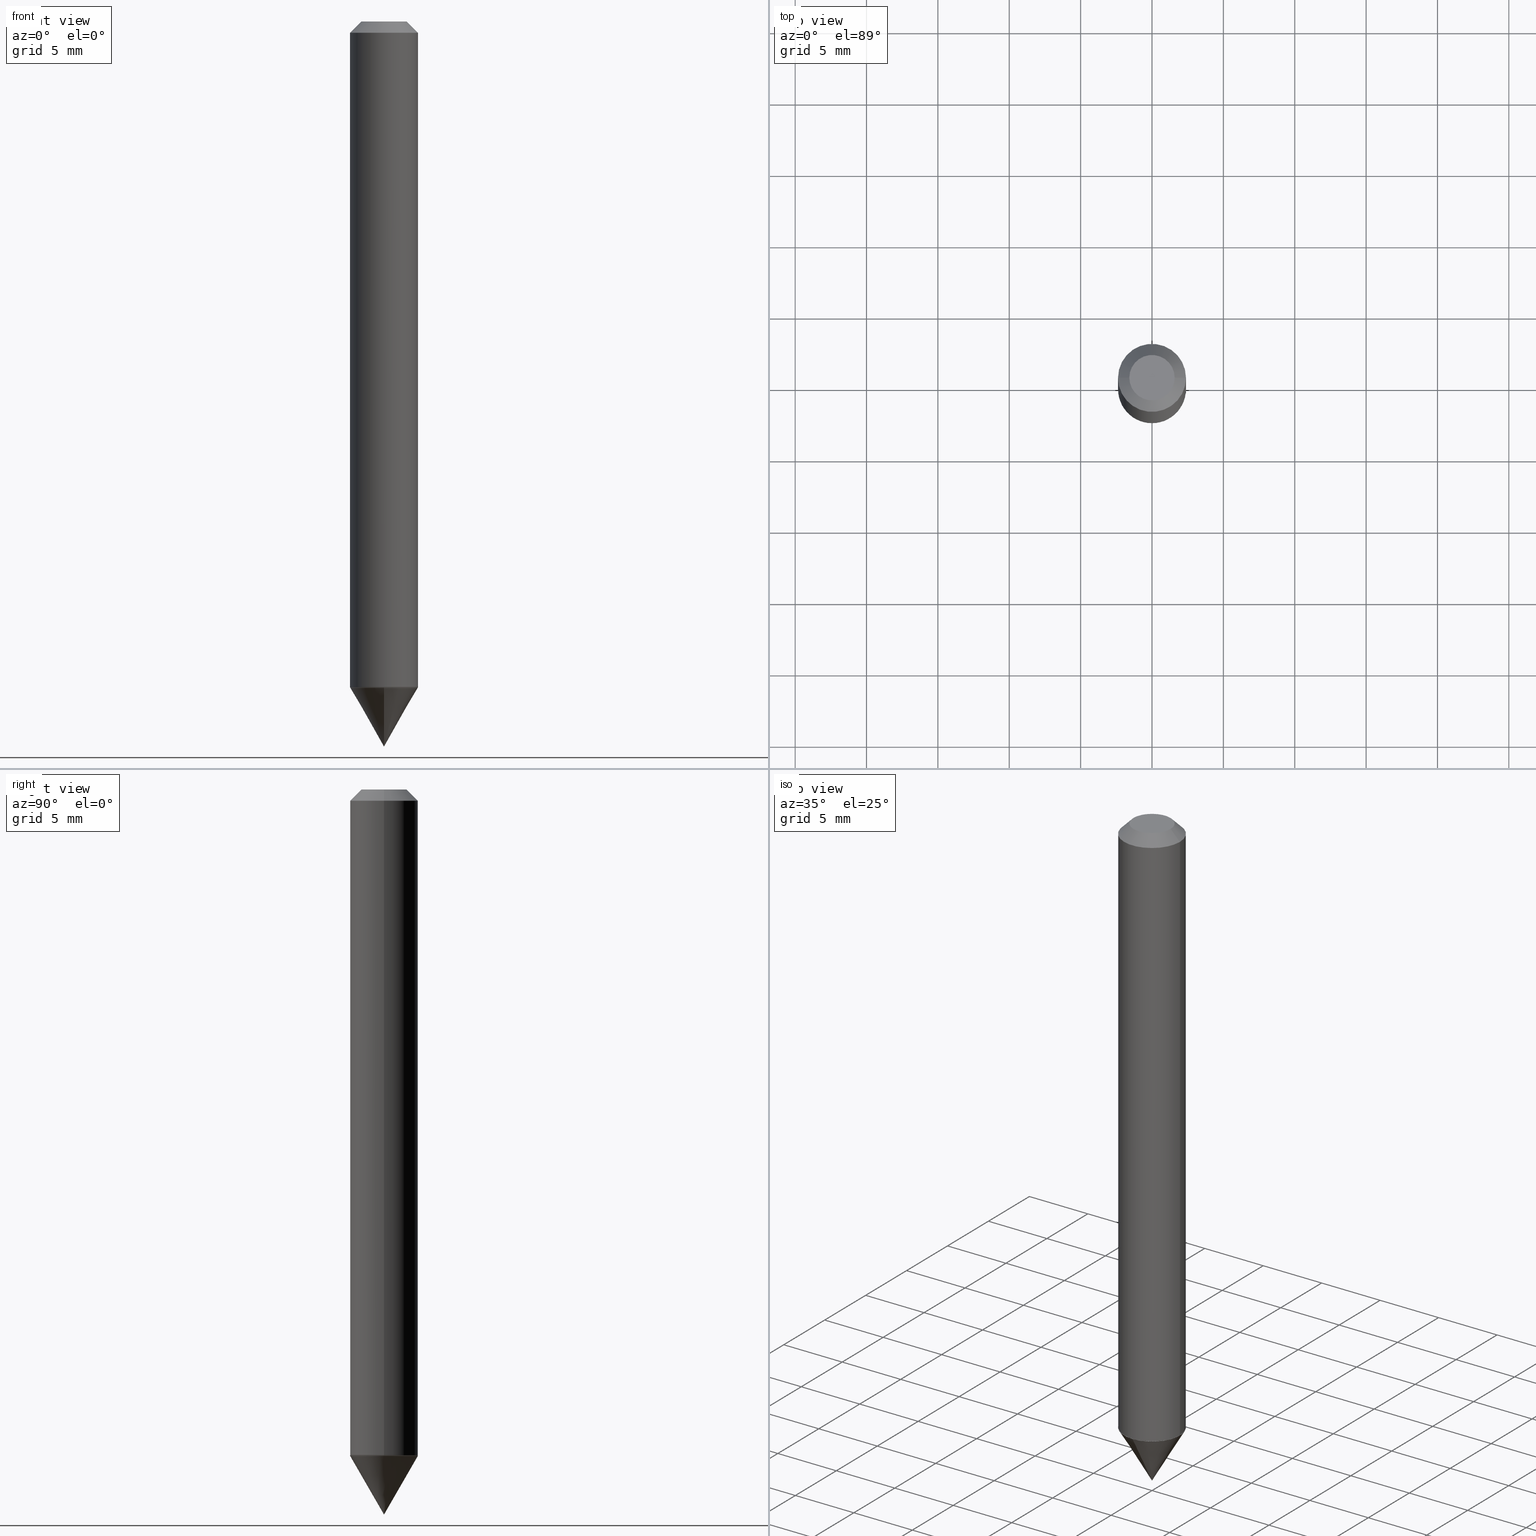
[diagram: canonical four-view strip — front | top / right | iso, engineering-drawing reading convention]
A machine part, canonical four-view strip (front | top / right | iso — engineering-drawing reading convention). The complete STEP part file that produces these views, byte-faithful:
ISO-10303-21;
HEADER;
FILE_DESCRIPTION (( 'STEP AP203' ),
    '1' );
FILE_NAME ('74004.STEP',
    '2024-03-04T15:00:55',
    ( '' ),
    ( '' ),
    'SwSTEP 2.0',
    'SolidWorks 2023',
    '' );
FILE_SCHEMA (( 'CONFIG_CONTROL_DESIGN' ));
ENDSEC;

DATA;
#1 = ORIENTED_EDGE ( 'NONE', *, *, #211, .F. ) ;
#2 = ADVANCED_FACE ( 'NONE', ( #42 ), #99, .T. ) ;
#3 = PERSON_AND_ORGANIZATION ( #117, #87 ) ;
#4 = CARTESIAN_POINT ( 'NONE',  ( -9.358861080966648015E-47, 1.336197326842804765E-32, 3.827021247335480313E-18 ) ) ;
#5 = ADVANCED_FACE ( 'NONE', ( #45 ), #199, .T. ) ;
#6 = CARTESIAN_POINT ( 'NONE',  ( 7.629862675297676574E-31, -1.089342177719068640E-16, -0.03120000000000020673 ) ) ;
#7 = DIRECTION ( 'NONE',  ( -2.445468806185136597E-29, 3.491481338843145583E-15, 1.000000000000000000 ) ) ;
#8 = AXIS2_PLACEMENT_3D ( 'NONE', #168, #170, #351 ) ;
#9 = CONICAL_SURFACE ( 'NONE', #8, 0.09375000000000001388, 0.7853981633974446153 ) ;
#10 = AXIS2_PLACEMENT_3D ( 'NONE', #345, #70, #13 ) ;
#11 = DIRECTION ( 'NONE',  ( 1.000000000000000000, -6.982962677686265133E-15, 0.000000000000000000 ) ) ;
#12 = FACE_OUTER_BOUND ( 'NONE', #372, .T. ) ;
#13 = DIRECTION ( 'NONE',  ( 1.000000000000000000, -6.982962677686266711E-15, 4.876176775795935793E-29 ) ) ;
#14 = LINE ( 'NONE', #19, #314 ) ;
#15 = CARTESIAN_POINT ( 'NONE',  ( 4.494215009748989040E-29, -6.415483977791985372E-15, -1.837620236790417083 ) ) ;
#16 = ORIENTED_EDGE ( 'NONE', *, *, #120, .F. ) ;
#17 = DIRECTION ( 'NONE',  ( 3.189554933143811858E-29, -2.425907654286061591E-15, -1.000000000000000000 ) ) ;
#18 = ORIENTED_EDGE ( 'NONE', *, *, #279, .F. ) ;
#19 = CARTESIAN_POINT ( 'NONE',  ( 0.09375000000000024980, -7.067178034328510701E-15, -1.836620236790417415 ) ) ;
#20 = AXIS2_PLACEMENT_3D ( 'NONE', #24, #85, #151 ) ;
#21 = EDGE_CURVE ( 'NONE', #179, #210, #86, .T. ) ;
#22 = FACE_OUTER_BOUND ( 'NONE', #75, .T. ) ;
#23 = CARTESIAN_POINT ( 'NONE',  ( 4.492620232282417841E-29, -6.414271023964843911E-15, -1.837120236790417582 ) ) ;
#24 = CARTESIAN_POINT ( 'NONE',  ( 4.492620232282417841E-29, -6.414271023964843911E-15, -1.837120236790417582 ) ) ;
#25 = APPLICATION_PROTOCOL_DEFINITION ( 'international standard', 'config_control_design', 1994, #330 ) ;
#26 = AXIS2_PLACEMENT_3D ( 'NONE', #23, #106, #265 ) ;
#27 = ORIENTED_EDGE ( 'NONE', *, *, #202, .F. ) ;
#28 = AXIS2_PLACEMENT_3D ( 'NONE', #267, #377, #229 ) ;
#29 = CONICAL_SURFACE ( 'NONE', #274, 0.09374999999999991673, 0.5235987755982879355 ) ;
#30 = CIRCLE ( 'NONE', #388, 0.09374999999999991673 ) ;
#31 = EDGE_CURVE ( 'NONE', #136, #154, #373, .T. ) ;
#32 =( GEOMETRIC_REPRESENTATION_CONTEXT ( 3 ) GLOBAL_UNCERTAINTY_ASSIGNED_CONTEXT ( ( #359 ) ) GLOBAL_UNIT_ASSIGNED_CONTEXT ( ( #124, #246, #327 ) ) REPRESENTATION_CONTEXT ( 'NONE', 'WORKASPACE' ) );
#33 = ORIENTED_EDGE ( 'NONE', *, *, #325, .T. ) ;
#34 = APPROVAL ( #307, 'UNSPECIFIED' ) ;
#35 = PERSON_AND_ORGANIZATION ( #117, #87 ) ;
#36 = CC_DESIGN_PERSON_AND_ORGANIZATION_ASSIGNMENT ( #35, #215, ( #150 ) ) ;
#37 = VERTEX_POINT ( 'NONE', #319 ) ;
#38 = DIRECTION ( 'NONE',  ( 3.189554933143811858E-29, -2.425907654286061591E-15, -1.000000000000000000 ) ) ;
#39 = EDGE_LOOP ( 'NONE', ( #1, #188, #153 ) ) ;
#40 = EDGE_CURVE ( 'NONE', #158, #37, #375, .T. ) ;
#41 = EDGE_LOOP ( 'NONE', ( #157, #303 ) ) ;
#42 = FACE_OUTER_BOUND ( 'NONE', #338, .T. ) ;
#43 = DIRECTION ( 'NONE',  ( 6.982962677686265922E-15, 1.000000000000000000, -2.929595703661407273E-15 ) ) ;
#44 = CARTESIAN_POINT ( 'NONE',  ( -0.09325000000000002731, -5.749040695694437318E-15, -1.837120236790416916 ) ) ;
#45 = FACE_OUTER_BOUND ( 'NONE', #184, .T. ) ;
#46 = LINE ( 'NONE', #291, #203 ) ;
#47 = EDGE_LOOP ( 'NONE', ( #317, #293 ) ) ;
#48 = CONICAL_SURFACE ( 'NONE', #371, 0.09375000000000024980, 0.7853981633980459121 ) ;
#49 = CARTESIAN_POINT ( 'NONE',  ( 4.492620232282417841E-29, -6.414271023964843911E-15, -1.837120236790417582 ) ) ;
#50 = CIRCLE ( 'NONE', #324, 0.06255000000000002225 ) ;
#51 = FACE_OUTER_BOUND ( 'NONE', #47, .T. ) ;
#52 = LINE ( 'NONE', #122, #69 ) ;
#53 = DESIGN_CONTEXT ( 'detailed design', #330, 'design' ) ;
#54 = MECHANICAL_CONTEXT ( 'NONE', #68, 'mechanical' ) ;
#55 = APPLICATION_PROTOCOL_DEFINITION ( 'international standard', 'config_control_design', 1994, #68 ) ;
#56 = APPROVAL_STATUS ( 'not_yet_approved' ) ;
#57 = EDGE_CURVE ( 'NONE', #158, #306, #239, .T. ) ;
#58 = ORIENTED_EDGE ( 'NONE', *, *, #31, .F. ) ;
#59 = AXIS2_PLACEMENT_3D ( 'NONE', #6, #253, #221 ) ;
#60 = ORIENTED_EDGE ( 'NONE', *, *, #142, .F. ) ;
#61 = PERSON_AND_ORGANIZATION_ROLE ( 'design_supplier' ) ;
#62 = EDGE_LOOP ( 'NONE', ( #92, #224, #362, #195 ) ) ;
#63 = APPROVAL_STATUS ( 'not_yet_approved' ) ;
#64 = CARTESIAN_POINT ( 'NONE',  ( -0.09375000000000001388, -2.594595935758567797E-15, -0.03120000000000020673 ) ) ;
#65 = EDGE_CURVE ( 'NONE', #390, #193, #191, .T. ) ;
#66 = ORIENTED_EDGE ( 'NONE', *, *, #344, .F. ) ;
#67 = CARTESIAN_POINT ( 'NONE',  ( -6.414565627915929694E-16, -0.09325000000000643885, -1.837120236790417360 ) ) ;
#68 = APPLICATION_CONTEXT ( 'configuration controlled 3d designs of mechanical parts and assemblies' ) ;
#69 = VECTOR ( 'NONE', #121, 39.37007874015748143 ) ;
#70 = DIRECTION ( 'NONE',  ( -2.445468806185136597E-29, 3.491481338843145583E-15, 1.000000000000000000 ) ) ;
#71 = DIRECTION ( 'NONE',  ( -2.445468806185136597E-29, 3.491481338843145583E-15, 1.000000000000000000 ) ) ;
#72 = CC_DESIGN_SECURITY_CLASSIFICATION ( #150, ( #271 ) ) ;
#73 = CC_DESIGN_PERSON_AND_ORGANIZATION_ASSIGNMENT ( #175, #361, ( #173 ) ) ;
#74 = FACE_OUTER_BOUND ( 'NONE', #39, .T. ) ;
#75 = EDGE_LOOP ( 'NONE', ( #278, #280 ) ) ;
#76 = DIRECTION ( 'NONE',  ( 1.000000000000000000, -6.982962677686266711E-15, 4.876176775795935793E-29 ) ) ;
#77 = DIRECTION ( 'NONE',  ( -2.445468806185136597E-29, 3.491481338843145583E-15, 1.000000000000000000 ) ) ;
#78 = DIRECTION ( 'NONE',  ( -2.445468806185136597E-29, 3.491481338843145583E-15, 1.000000000000000000 ) ) ;
#79 = LOCAL_TIME ( 10, 0, 55.00000000000000000, #96 ) ;
#80 = ORIENTED_EDGE ( 'NONE', *, *, #259, .F. ) ;
#81 = DIRECTION ( 'NONE',  ( -1.000000000000000000, 6.982962677686265922E-15, -4.876176775795935793E-29 ) ) ;
#82 = AXIS2_PLACEMENT_3D ( 'NONE', #144, #78, #230 ) ;
#83 = CIRCLE ( 'NONE', #354, 0.09374999999999991673 ) ;
#84 = DATE_AND_TIME ( #355, #364 ) ;
#85 = DIRECTION ( 'NONE',  ( 3.189554933143811858E-29, -2.425907654286061591E-15, -1.000000000000000000 ) ) ;
#86 = CIRCLE ( 'NONE', #206, 0.09325000000000002731 ) ;
#87 = ORGANIZATION ( 'UNSPECIFIED', 'UNSPECIFIED', '' ) ;
#88 = VERTEX_POINT ( 'NONE', #286 ) ;
#89 = DATE_AND_TIME ( #363, #123 ) ;
#90 = APPROVAL_PERSON_ORGANIZATION ( #342, #34, #276 ) ;
#91 = PERSON_AND_ORGANIZATION ( #117, #87 ) ;
#92 = ORIENTED_EDGE ( 'NONE', *, *, #243, .T. ) ;
#93 = CARTESIAN_POINT ( 'NONE',  ( 0.09375000000000001388, -7.635869688049943558E-16, -0.03120000000000020673 ) ) ;
#94 = CARTESIAN_POINT ( 'NONE',  ( 4.491397497879325039E-29, -6.412525283295421619E-15, -1.836620236790417415 ) ) ;
#95 = EDGE_LOOP ( 'NONE', ( #58, #379, #332, #217 ) ) ;
#96 = COORDINATED_UNIVERSAL_TIME_OFFSET ( 5, 0, .BEHIND. ) ;
#97 = DIRECTION ( 'NONE',  ( 6.982962677686266711E-15, 1.000000000000000000, -2.913971193241883527E-15 ) ) ;
#98 = VERTEX_POINT ( 'NONE', #352 ) ;
#99 = CONICAL_SURFACE ( 'NONE', #321, 0.09375000000000024980, 0.7853981633980459121 ) ;
#100 = AXIS2_PLACEMENT_3D ( 'NONE', #287, #204, #225 ) ;
#101 = DIRECTION ( 'NONE',  ( 1.000000000000000000, -6.982962677686267499E-15, 4.876132606543208763E-29 ) ) ;
#102 = AXIS2_PLACEMENT_3D ( 'NONE', #49, #244, #205 ) ;
#103 = CARTESIAN_POINT ( 'NONE',  ( -0.09375000000000012490, 6.661338147750948117E-16, -4.611501647113980301E-30 ) ) ;
#104 = APPROVAL ( #56, 'UNSPECIFIED' ) ;
#105 = DIRECTION ( 'NONE',  ( -4.851104656542282461E-15, -0.7071067811867421948, -0.7071067811863526176 ) ) ;
#106 = DIRECTION ( 'NONE',  ( -3.189554933143811858E-29, 2.425907654286061591E-15, 1.000000000000000000 ) ) ;
#107 = CARTESIAN_POINT ( 'NONE',  ( 4.494215009748989040E-29, -6.415483977791985372E-15, -1.837620236790417083 ) ) ;
#108 = ORIENTED_EDGE ( 'NONE', *, *, #272, .F. ) ;
#109 = DIRECTION ( 'NONE',  ( -0.7071067811865449082, 2.468850131082229450E-15, -0.7071067811865501263 ) ) ;
#110 = DIRECTION ( 'NONE',  ( 1.000000000000000000, -6.982962677686265922E-15, 0.000000000000000000 ) ) ;
#111 = DIRECTION ( 'NONE',  ( 0.7071067811869701236, -2.468850131086683359E-15, 0.7071067811861249108 ) ) ;
#112 = ADVANCED_FACE ( 'NONE', ( #310 ), #222, .T. ) ;
#113 = CARTESIAN_POINT ( 'NONE',  ( 4.492620232282417841E-29, -6.414271023964843911E-15, -1.837120236790417582 ) ) ;
#114 = FACE_OUTER_BOUND ( 'NONE', #341, .T. ) ;
#115 = LOCAL_TIME ( 10, 0, 55.00000000000000000, #127 ) ;
#116 = DIRECTION ( 'NONE',  ( 2.438088387897960049E-29, -3.491481338843145188E-15, -1.000000000000000000 ) ) ;
#117 = PERSON ( 'UNSPECIFIED', 'UNSPECIFIED', 'UNSPECIFIED', ('UNSPECIFIED'), ('UNSPECIFIED'), ('UNSPECIFIED') ) ;
#118 = CIRCLE ( 'NONE', #201, 0.09375000000000024980 ) ;
#119 = AXIS2_PLACEMENT_3D ( 'NONE', #165, #71, #289 ) ;
#120 = EDGE_CURVE ( 'NONE', #390, #136, #118, .T. ) ;
#121 = DIRECTION ( 'NONE',  ( 0.7071067811865449082, -7.319954787623246579E-15, -0.7071067811865501263 ) ) ;
#122 = CARTESIAN_POINT ( 'NONE',  ( 0.09375000000000001388, -7.521059050629880343E-16, -0.03120000000000020673 ) ) ;
#123 = LOCAL_TIME ( 10, 0, 55.00000000000000000, #189 ) ;
#124 =( CONVERSION_BASED_UNIT ( 'INCH', #242 ) LENGTH_UNIT ( ) NAMED_UNIT ( #311 ) );
#125 = ORIENTED_EDGE ( 'NONE', *, *, #207, .F. ) ;
#126 = FACE_OUTER_BOUND ( 'NONE', #219, .T. ) ;
#127 = COORDINATED_UNIVERSAL_TIME_OFFSET ( 5, 0, .BEHIND. ) ;
#128 = EDGE_CURVE ( 'NONE', #306, #88, #262, .T. ) ;
#129 = EDGE_LOOP ( 'NONE', ( #347, #227, #181, #60 ) ) ;
#130 = CARTESIAN_POINT ( 'NONE',  ( 4.494215009748989040E-29, -6.415483977791985372E-15, -1.837620236790417083 ) ) ;
#131 = COORDINATED_UNIVERSAL_TIME_OFFSET ( 5, 0, .BEHIND. ) ;
#132 = DIRECTION ( 'NONE',  ( 3.189554933143811858E-29, -2.425907654286061591E-15, -1.000000000000000000 ) ) ;
#133 = CARTESIAN_POINT ( 'NONE',  ( 4.491397497879325039E-29, -6.412525283295421619E-15, -1.836620236790417415 ) ) ;
#134 = ADVANCED_FACE ( 'NONE', ( #126 ), #48, .T. ) ;
#135 = VECTOR ( 'NONE', #105, 39.37007874015748854 ) ;
#136 = VERTEX_POINT ( 'NONE', #216 ) ;
#137 = PRODUCT_RELATED_PRODUCT_CATEGORY ( 'detail', '', ( #335 ) ) ;
#138 = DIRECTION ( 'NONE',  ( -6.982962677686266711E-15, -1.000000000000000000, 2.913971193241883527E-15 ) ) ;
#139 = ORIENTED_EDGE ( 'NONE', *, *, #148, .F. ) ;
#140 = DIRECTION ( 'NONE',  ( 1.000000000000000000, -6.982962677686265133E-15, 0.000000000000000000 ) ) ;
#141 = FACE_OUTER_BOUND ( 'NONE', #41, .T. ) ;
#142 = EDGE_CURVE ( 'NONE', #37, #88, #30, .T. ) ;
#143 = ORIENTED_EDGE ( 'NONE', *, *, #386, .T. ) ;
#144 = CARTESIAN_POINT ( 'NONE',  ( 4.492620232282416159E-29, -6.414271023964841545E-15, -1.837120236790416916 ) ) ;
#145 = VECTOR ( 'NONE', #376, 39.37007874015748143 ) ;
#146 = DIRECTION ( 'NONE',  ( -3.189554933143811858E-29, 2.425907654286061591E-15, 1.000000000000000000 ) ) ;
#147 = APPROVAL_PERSON_ORGANIZATION ( #3, #288, #369 ) ;
#148 = EDGE_CURVE ( 'NONE', #98, #252, #256, .T. ) ;
#149 = CARTESIAN_POINT ( 'NONE',  ( 0.09375000000000024980, -7.067178034328510701E-15, -1.836620236790417415 ) ) ;
#150 = SECURITY_CLASSIFICATION ( '', '', #304 ) ;
#151 = DIRECTION ( 'NONE',  ( 6.982962677686265922E-15, 1.000000000000000000, -2.929595703661407273E-15 ) ) ;
#152 = CIRCLE ( 'NONE', #82, 0.09325000000000002731 ) ;
#153 = ORIENTED_EDGE ( 'NONE', *, *, #183, .T. ) ;
#154 = VERTEX_POINT ( 'NONE', #64 ) ;
#155 = CC_DESIGN_APPROVAL ( #34, ( #271 ) ) ;
#156 = MANIFOLD_SOLID_BREP ( 'Body-Move/Copy2[1]', #387 ) ;
#157 = ORIENTED_EDGE ( 'NONE', *, *, #243, .F. ) ;
#158 = VERTEX_POINT ( 'NONE', #67 ) ;
#159 = ORIENTED_EDGE ( 'NONE', *, *, #277, .T. ) ;
#160 = CC_DESIGN_PERSON_AND_ORGANIZATION_ASSIGNMENT ( #91, #213, ( #271 ) ) ;
#161 = DIRECTION ( 'NONE',  ( -2.445468806185136877E-29, 3.491481338843145188E-15, 1.000000000000000000 ) ) ;
#162 = APPROVAL_DATE_TIME ( #309, #288 ) ;
#163 = ORIENTED_EDGE ( 'NONE', *, *, #142, .T. ) ;
#164 = DIRECTION ( 'NONE',  ( 6.982962677686265922E-15, 1.000000000000000000, -2.929595703661407273E-15 ) ) ;
#165 = CARTESIAN_POINT ( 'NONE',  ( -9.358861080966648015E-47, 1.336197326842804765E-32, 3.827021247335480313E-18 ) ) ;
#166 = ORIENTED_EDGE ( 'NONE', *, *, #120, .T. ) ;
#167 = ADVANCED_FACE ( 'NONE', ( #12 ), #385, .T. ) ;
#168 = CARTESIAN_POINT ( 'NONE',  ( 7.629862675297676574E-31, -1.089342177719068640E-16, -0.03120000000000020673 ) ) ;
#169 = DIRECTION ( 'NONE',  ( -2.445468806185136877E-29, 3.491481338843145188E-15, 1.000000000000000000 ) ) ;
#170 = DIRECTION ( 'NONE',  ( 2.445468806185136597E-29, -3.491481338843145583E-15, -1.000000000000000000 ) ) ;
#171 = CONICAL_SURFACE ( 'NONE', #20, 0.09325000000000002731, 0.7853981633977213939 ) ;
#172 = PLANE ( 'NONE',  #26 ) ;
#173 = PRODUCT_DEFINITION ( 'UNKNOWN', '', #271, #53 ) ;
#174 = LINE ( 'NONE', #192, #145 ) ;
#175 = PERSON_AND_ORGANIZATION ( #117, #87 ) ;
#176 = CARTESIAN_POINT ( 'NONE',  ( 0.000000000000000000, 0.000000000000000000, 0.000000000000000000 ) ) ;
#177 = EDGE_CURVE ( 'NONE', #365, #88, #249, .T. ) ;
#178 = PERSON_AND_ORGANIZATION ( #117, #87 ) ;
#179 = VERTEX_POINT ( 'NONE', #367 ) ;
#180 = ADVANCED_BREP_SHAPE_REPRESENTATION ( '74004', ( #156, #292, #231 ), #32 ) ;
#181 = ORIENTED_EDGE ( 'NONE', *, *, #128, .T. ) ;
#182 = CALENDAR_DATE ( 2024, 4, 3 ) ;
#183 = EDGE_CURVE ( 'NONE', #88, #37, #83, .T. ) ;
#184 = EDGE_LOOP ( 'NONE', ( #27, #143, #254, #18 ) ) ;
#185 = ORIENTED_EDGE ( 'NONE', *, *, #344, .T. ) ;
#186 = CALENDAR_DATE ( 2024, 4, 3 ) ;
#187 = DIRECTION ( 'NONE',  ( -2.445468806185136597E-29, 3.491481338843145583E-15, 1.000000000000000000 ) ) ;
#188 = ORIENTED_EDGE ( 'NONE', *, *, #177, .T. ) ;
#189 = COORDINATED_UNIVERSAL_TIME_OFFSET ( 5, 0, .BEHIND. ) ;
#190 = CARTESIAN_POINT ( 'NONE',  ( 4.491397497879325039E-29, -6.412525283295421619E-15, -1.836620236790417415 ) ) ;
#191 = LINE ( 'NONE', #315, #284 ) ;
#192 = CARTESIAN_POINT ( 'NONE',  ( -0.09375000000000024980, -5.746391468520326117E-15, -1.836620236790417415 ) ) ;
#193 = VERTEX_POINT ( 'NONE', #93 ) ;
#194 = FACE_OUTER_BOUND ( 'NONE', #62, .T. ) ;
#195 = ORIENTED_EDGE ( 'NONE', *, *, #128, .F. ) ;
#196 = CARTESIAN_POINT ( 'NONE',  ( -0.09375000000000001388, 5.457185332611806524E-16, -0.03120000000000020673 ) ) ;
#197 = DIRECTION ( 'NONE',  ( 4.937700262165901727E-15, 0.7071067811867389752, -0.7071067811863560593 ) ) ;
#198 = FACE_OUTER_BOUND ( 'NONE', #290, .T. ) ;
#199 = CONICAL_SURFACE ( 'NONE', #28, 0.09375000000000001388, 0.7853981633974446153 ) ;
#200 = AXIS2_PLACEMENT_3D ( 'NONE', #234, #116, #316 ) ;
#201 = AXIS2_PLACEMENT_3D ( 'NONE', #190, #282, #11 ) ;
#202 = EDGE_CURVE ( 'NONE', #252, #98, #50, .T. ) ;
#203 = VECTOR ( 'NONE', #294, 39.37007874015748143 ) ;
#204 = DIRECTION ( 'NONE',  ( -2.445468806185136597E-29, 3.491481338843145583E-15, 1.000000000000000000 ) ) ;
#205 = DIRECTION ( 'NONE',  ( 6.982962677686265922E-15, 1.000000000000000000, -2.929595703661407273E-15 ) ) ;
#206 = AXIS2_PLACEMENT_3D ( 'NONE', #264, #77, #110 ) ;
#207 = EDGE_CURVE ( 'NONE', #193, #154, #275, .T. ) ;
#208 = DIRECTION ( 'NONE',  ( -2.445468806185136597E-29, 3.491481338843145583E-15, 1.000000000000000000 ) ) ;
#209 = PERSON_AND_ORGANIZATION_ROLE ( 'design_owner' ) ;
#210 = VERTEX_POINT ( 'NONE', #44 ) ;
#211 = EDGE_CURVE ( 'NONE', #365, #37, #46, .T. ) ;
#212 = CC_DESIGN_DATE_AND_TIME_ASSIGNMENT ( #302, #370, ( #173 ) ) ;
#213 = PERSON_AND_ORGANIZATION_ROLE ( 'creator' ) ;
#214 = ORIENTED_EDGE ( 'NONE', *, *, #177, .F. ) ;
#215 = PERSON_AND_ORGANIZATION_ROLE ( 'classification_officer' ) ;
#216 = CARTESIAN_POINT ( 'NONE',  ( -0.09375000000000024980, -5.746391468520326117E-15, -1.836620236790417415 ) ) ;
#217 = ORIENTED_EDGE ( 'NONE', *, *, #325, .F. ) ;
#218 = ADVANCED_FACE ( 'NONE', ( #114 ), #9, .T. ) ;
#219 = EDGE_LOOP ( 'NONE', ( #313, #185, #16, #108 ) ) ;
#220 = AXIS2_PLACEMENT_3D ( 'NONE', #15, #343, #138 ) ;
#221 = DIRECTION ( 'NONE',  ( 1.000000000000000000, -6.982962677686265922E-15, 0.000000000000000000 ) ) ;
#222 = CYLINDRICAL_SURFACE ( 'NONE', #10, 0.09375000000000012490 ) ;
#223 = AXIS2_PLACEMENT_3D ( 'NONE', #236, #263, #81 ) ;
#224 = ORIENTED_EDGE ( 'NONE', *, *, #40, .T. ) ;
#225 = DIRECTION ( 'NONE',  ( 1.000000000000000000, -6.982962677686265922E-15, 0.000000000000000000 ) ) ;
#226 = DIRECTION ( 'NONE',  ( 6.982962677686266711E-15, 1.000000000000000000, -2.913971193241883527E-15 ) ) ;
#227 = ORIENTED_EDGE ( 'NONE', *, *, #57, .T. ) ;
#228 = CARTESIAN_POINT ( 'NONE',  ( 6.511612696942893634E-16, 0.09324999999999360190, -1.837120236790417804 ) ) ;
#229 = DIRECTION ( 'NONE',  ( -1.000000000000000000, 6.982962677686265922E-15, 0.000000000000000000 ) ) ;
#230 = DIRECTION ( 'NONE',  ( 1.000000000000000000, -6.982962677686265922E-15, 0.000000000000000000 ) ) ;
#231 = AXIS2_PLACEMENT_3D ( 'NONE', #176, #384, #360 ) ;
#232 = CARTESIAN_POINT ( 'NONE',  ( 6.511612696942893634E-16, 0.09324999999999360190, -1.837120236790417804 ) ) ;
#233 = ORIENTED_EDGE ( 'NONE', *, *, #386, .F. ) ;
#234 = CARTESIAN_POINT ( 'NONE',  ( 4.492620232282416159E-29, -6.414271023964841545E-15, -1.837120236790416916 ) ) ;
#235 = AXIS2_PLACEMENT_3D ( 'NONE', #381, #17, #164 ) ;
#236 = CARTESIAN_POINT ( 'NONE',  ( -4.679430540483324007E-47, 6.680986634214023823E-33, 1.913510623667740157E-18 ) ) ;
#237 = CIRCLE ( 'NONE', #235, 0.09325000000000002731 ) ;
#238 = CC_DESIGN_PERSON_AND_ORGANIZATION_ASSIGNMENT ( #333, #61, ( #271 ) ) ;
#239 = CIRCLE ( 'NONE', #323, 0.09325000000000002731 ) ;
#240 = COORDINATED_UNIVERSAL_TIME_OFFSET ( 5, 0, .BEHIND. ) ;
#241 = CONICAL_SURFACE ( 'NONE', #102, 0.09325000000000002731, 0.7853981633977213939 ) ;
#242 = LENGTH_MEASURE_WITH_UNIT ( LENGTH_MEASURE( 0.02539999999999999897 ), #299 );
#243 = EDGE_CURVE ( 'NONE', #306, #158, #237, .T. ) ;
#244 = DIRECTION ( 'NONE',  ( 3.189554933143811858E-29, -2.425907654286061591E-15, -1.000000000000000000 ) ) ;
#245 = APPROVAL_PERSON_ORGANIZATION ( #329, #104, #273 ) ;
#246 =( NAMED_UNIT ( * ) PLANE_ANGLE_UNIT ( ) SI_UNIT ( $, .RADIAN. ) );
#247 = DIRECTION ( 'NONE',  ( 1.000000000000000000, -6.982962677686265133E-15, 0.000000000000000000 ) ) ;
#248 = CALENDAR_DATE ( 2024, 4, 3 ) ;
#249 = LINE ( 'NONE', #261, #389 ) ;
#250 = APPROVAL_DATE_TIME ( #89, #34 ) ;
#251 = ADVANCED_FACE ( 'NONE', ( #141 ), #172, .T. ) ;
#252 = VERTEX_POINT ( 'NONE', #269 ) ;
#253 = DIRECTION ( 'NONE',  ( -2.445468806185136597E-29, 3.491481338843145583E-15, 1.000000000000000000 ) ) ;
#254 = ORIENTED_EDGE ( 'NONE', *, *, #207, .T. ) ;
#255 = CIRCLE ( 'NONE', #100, 0.09375000000000001388 ) ;
#256 = CIRCLE ( 'NONE', #119, 0.06255000000000002225 ) ;
#257 = CC_DESIGN_APPROVAL ( #104, ( #173 ) ) ;
#258 = CARTESIAN_POINT ( 'NONE',  ( -6.397414382921505101E-16, -0.09325000000000643885, -1.837120236790417360 ) ) ;
#259 = EDGE_CURVE ( 'NONE', #136, #390, #383, .T. ) ;
#260 = AXIS2_PLACEMENT_3D ( 'NONE', #322, #296, #76 ) ;
#261 = CARTESIAN_POINT ( 'NONE',  ( 6.661338147751381005E-16, 0.09374999999999350520, -1.837620236790417527 ) ) ;
#262 = LINE ( 'NONE', #232, #340 ) ;
#263 = DIRECTION ( 'NONE',  ( 2.438088387897960049E-29, -3.491481338843145188E-15, -1.000000000000000000 ) ) ;
#264 = CARTESIAN_POINT ( 'NONE',  ( 4.492620232282416159E-29, -6.414271023964841545E-15, -1.837120236790416916 ) ) ;
#265 = DIRECTION ( 'NONE',  ( -6.982962677686265922E-15, -1.000000000000000000, 2.425907654286061591E-15 ) ) ;
#266 = LOCAL_TIME ( 10, 0, 55.00000000000000000, #131 ) ;
#267 = CARTESIAN_POINT ( 'NONE',  ( 7.629862675297676574E-31, -1.089342177719068640E-16, -0.03120000000000020673 ) ) ;
#268 = DIRECTION ( 'NONE',  ( -6.982962677686266711E-15, -1.000000000000000000, 2.913971193241883527E-15 ) ) ;
#269 = CARTESIAN_POINT ( 'NONE',  ( 0.06255000000000002225, -5.906150274117987723E-16, 3.827021247339071787E-18 ) ) ;
#270 = AXIS2_PLACEMENT_3D ( 'NONE', #378, #346, #318 ) ;
#271 = PRODUCT_DEFINITION_FORMATION_WITH_SPECIFIED_SOURCE ( 'ANY', '', #335, .NOT_KNOWN. ) ;
#272 = EDGE_CURVE ( 'NONE', #179, #390, #14, .T. ) ;
#273 = APPROVAL_ROLE ( '' ) ;
#274 = AXIS2_PLACEMENT_3D ( 'NONE', #380, #146, #268 ) ;
#275 = CIRCLE ( 'NONE', #59, 0.09375000000000001388 ) ;
#276 = APPROVAL_ROLE ( '' ) ;
#277 = EDGE_CURVE ( 'NONE', #210, #179, #152, .T. ) ;
#278 = ORIENTED_EDGE ( 'NONE', *, *, #148, .T. ) ;
#279 = EDGE_CURVE ( 'NONE', #98, #154, #353, .T. ) ;
#280 = ORIENTED_EDGE ( 'NONE', *, *, #202, .T. ) ;
#281 = DIRECTION ( 'NONE',  ( 3.189554933143811858E-29, -2.425907654286061591E-15, -1.000000000000000000 ) ) ;
#282 = DIRECTION ( 'NONE',  ( -2.445468806185136597E-29, 3.491481338843145583E-15, 1.000000000000000000 ) ) ;
#283 = SHAPE_DEFINITION_REPRESENTATION ( #328, #180 ) ;
#284 = VECTOR ( 'NONE', #169, 39.37007874015748143 ) ;
#285 = ADVANCED_FACE ( 'NONE', ( #74 ), #29, .T. ) ;
#286 = CARTESIAN_POINT ( 'NONE',  ( 6.661338147751383963E-16, 0.09374999999999353295, -1.837620236790417527 ) ) ;
#287 = CARTESIAN_POINT ( 'NONE',  ( 7.629862675297676574E-31, -1.089342177719068640E-16, -0.03120000000000020673 ) ) ;
#288 = APPROVAL ( #63, 'UNSPECIFIED' ) ;
#289 = DIRECTION ( 'NONE',  ( 1.000000000000000000, -6.982962677686267499E-15, 4.876132606543208763E-29 ) ) ;
#290 = EDGE_LOOP ( 'NONE', ( #166, #350, #125, #331 ) ) ;
#291 = CARTESIAN_POINT ( 'NONE',  ( -6.546527510330420460E-16, -0.09375000000000634215, -1.837620236790416861 ) ) ;
#292 = MANIFOLD_SOLID_BREP ( 'Body-Move/Copy2[2]', #339 ) ;
#293 = ORIENTED_EDGE ( 'NONE', *, *, #277, .F. ) ;
#294 = DIRECTION ( 'NONE',  ( -3.491481338843093912E-15, -0.4999999999999883427, 0.8660254037844452579 ) ) ;
#295 = ADVANCED_FACE ( 'NONE', ( #51 ), #320, .T. ) ;
#296 = DIRECTION ( 'NONE',  ( -2.445468806185136597E-29, 3.491481338843145583E-15, 1.000000000000000000 ) ) ;
#297 = CYLINDRICAL_SURFACE ( 'NONE', #260, 0.09375000000000012490 ) ;
#298 = CARTESIAN_POINT ( 'NONE',  ( 6.379109866287624838E-29, -4.851815308572123183E-15, -2.000000000000000000 ) ) ;
#299 =( LENGTH_UNIT ( ) NAMED_UNIT ( * ) SI_UNIT ( $, .METRE. ) );
#300 = VECTOR ( 'NONE', #109, 39.37007874015748143 ) ;
#301 = ORIENTED_EDGE ( 'NONE', *, *, #211, .T. ) ;
#302 = DATE_AND_TIME ( #182, #266 ) ;
#303 = ORIENTED_EDGE ( 'NONE', *, *, #57, .F. ) ;
#304 = SECURITY_CLASSIFICATION_LEVEL ( 'unclassified' ) ;
#305 = CC_DESIGN_APPROVAL ( #288, ( #150 ) ) ;
#306 = VERTEX_POINT ( 'NONE', #228 ) ;
#307 = APPROVAL_STATUS ( 'not_yet_approved' ) ;
#308 = VECTOR ( 'NONE', #161, 39.37007874015748143 ) ;
#309 = DATE_AND_TIME ( #186, #79 ) ;
#310 = FACE_OUTER_BOUND ( 'NONE', #95, .T. ) ;
#311 = DIMENSIONAL_EXPONENTS ( 1.000000000000000000, 0.000000000000000000, 0.000000000000000000, 0.000000000000000000, 0.000000000000000000, 0.000000000000000000, 0.000000000000000000 ) ;
#312 = CC_DESIGN_PERSON_AND_ORGANIZATION_ASSIGNMENT ( #178, #209, ( #335 ) ) ;
#313 = ORIENTED_EDGE ( 'NONE', *, *, #21, .T. ) ;
#314 = VECTOR ( 'NONE', #111, 39.37007874015748143 ) ;
#315 = CARTESIAN_POINT ( 'NONE',  ( 0.09375000000000012490, -6.546527510330883916E-16, 4.571415727308696112E-30 ) ) ;
#316 = DIRECTION ( 'NONE',  ( -1.000000000000000000, 6.982962677686265922E-15, -4.876176775795935793E-29 ) ) ;
#317 = ORIENTED_EDGE ( 'NONE', *, *, #21, .F. ) ;
#318 = DIRECTION ( 'NONE',  ( 1.000000000000000000, -6.982962677686265133E-15, 0.000000000000000000 ) ) ;
#319 = CARTESIAN_POINT ( 'NONE',  ( -6.546527510330417502E-16, -0.09375000000000631439, -1.837620236790416861 ) ) ;
#320 = PLANE ( 'NONE',  #200 ) ;
#321 = AXIS2_PLACEMENT_3D ( 'NONE', #133, #7, #140 ) ;
#322 = CARTESIAN_POINT ( 'NONE',  ( 0.000000000000000000, 0.000000000000000000, 0.000000000000000000 ) ) ;
#323 = AXIS2_PLACEMENT_3D ( 'NONE', #113, #281, #43 ) ;
#324 = AXIS2_PLACEMENT_3D ( 'NONE', #4, #187, #101 ) ;
#325 = EDGE_CURVE ( 'NONE', #154, #193, #255, .T. ) ;
#326 = APPROVAL_DATE_TIME ( #84, #104 ) ;
#327 =( NAMED_UNIT ( * ) SI_UNIT ( $, .STERADIAN. ) SOLID_ANGLE_UNIT ( ) );
#328 = PRODUCT_DEFINITION_SHAPE ( 'NONE', 'NONE',  #173 ) ;
#329 = PERSON_AND_ORGANIZATION ( #117, #87 ) ;
#330 = APPLICATION_CONTEXT ( 'configuration controlled 3d designs of mechanical parts and assemblies' ) ;
#331 = ORIENTED_EDGE ( 'NONE', *, *, #65, .F. ) ;
#332 = ORIENTED_EDGE ( 'NONE', *, *, #65, .T. ) ;
#333 = PERSON_AND_ORGANIZATION ( #117, #87 ) ;
#334 = ADVANCED_FACE ( 'NONE', ( #22 ), #348, .F. ) ;
#335 = PRODUCT ( '74004', '74004', '', ( #54 ) ) ;
#336 = ORIENTED_EDGE ( 'NONE', *, *, #272, .T. ) ;
#337 = DATE_TIME_ROLE ( 'classification_date' ) ;
#338 = EDGE_LOOP ( 'NONE', ( #66, #159, #336, #80 ) ) ;
#339 = CLOSED_SHELL ( 'NONE', ( #5, #349, #134, #295, #2, #112, #218, #334 ) ) ;
#340 = VECTOR ( 'NONE', #197, 39.37007874015748143 ) ;
#341 = EDGE_LOOP ( 'NONE', ( #233, #139, #368, #33 ) ) ;
#342 = PERSON_AND_ORGANIZATION ( #117, #87 ) ;
#343 = DIRECTION ( 'NONE',  ( -3.189554933143811858E-29, 2.425907654286061591E-15, 1.000000000000000000 ) ) ;
#344 = EDGE_CURVE ( 'NONE', #210, #136, #174, .T. ) ;
#345 = CARTESIAN_POINT ( 'NONE',  ( 0.000000000000000000, 0.000000000000000000, 0.000000000000000000 ) ) ;
#346 = DIRECTION ( 'NONE',  ( -2.445468806185136597E-29, 3.491481338843145583E-15, 1.000000000000000000 ) ) ;
#347 = ORIENTED_EDGE ( 'NONE', *, *, #40, .F. ) ;
#348 = PLANE ( 'NONE',  #223 ) ;
#349 = ADVANCED_FACE ( 'NONE', ( #198 ), #297, .T. ) ;
#350 = ORIENTED_EDGE ( 'NONE', *, *, #31, .T. ) ;
#351 = DIRECTION ( 'NONE',  ( -1.000000000000000000, 6.982962677686265922E-15, 0.000000000000000000 ) ) ;
#352 = CARTESIAN_POINT ( 'NONE',  ( -0.06255000000000002225, 4.912514243752283606E-16, 3.827021247332235506E-18 ) ) ;
#353 = LINE ( 'NONE', #196, #300 ) ;
#354 = AXIS2_PLACEMENT_3D ( 'NONE', #107, #38, #226 ) ;
#355 = CALENDAR_DATE ( 2024, 4, 3 ) ;
#356 = CC_DESIGN_DATE_AND_TIME_ASSIGNMENT ( #366, #337, ( #150 ) ) ;
#357 = FACE_OUTER_BOUND ( 'NONE', #129, .T. ) ;
#358 = ADVANCED_FACE ( 'NONE', ( #194 ), #241, .T. ) ;
#359 = UNCERTAINTY_MEASURE_WITH_UNIT (LENGTH_MEASURE( 1.000000000000000082E-05 ), #124, 'distance_accuracy_value', 'NONE');
#360 = DIRECTION ( 'NONE',  ( 1.000000000000000000, 0.000000000000000000, 0.000000000000000000 ) ) ;
#361 = PERSON_AND_ORGANIZATION_ROLE ( 'creator' ) ;
#362 = ORIENTED_EDGE ( 'NONE', *, *, #183, .F. ) ;
#363 = CALENDAR_DATE ( 2024, 4, 3 ) ;
#364 = LOCAL_TIME ( 10, 0, 55.00000000000000000, #240 ) ;
#365 = VERTEX_POINT ( 'NONE', #298 ) ;
#366 = DATE_AND_TIME ( #248, #115 ) ;
#367 = CARTESIAN_POINT ( 'NONE',  ( 0.09325000000000002731, -7.065432293659086042E-15, -1.837120236790416916 ) ) ;
#368 = ORIENTED_EDGE ( 'NONE', *, *, #279, .T. ) ;
#369 = APPROVAL_ROLE ( '' ) ;
#370 = DATE_TIME_ROLE ( 'creation_date' ) ;
#371 = AXIS2_PLACEMENT_3D ( 'NONE', #94, #208, #247 ) ;
#372 = EDGE_LOOP ( 'NONE', ( #214, #301, #163 ) ) ;
#373 = LINE ( 'NONE', #103, #308 ) ;
#374 = DIRECTION ( 'NONE',  ( 3.552713678800405477E-15, 0.4999999999999926170, 0.8660254037844429265 ) ) ;
#375 = LINE ( 'NONE', #258, #135 ) ;
#376 = DIRECTION ( 'NONE',  ( -0.7071067811869701236, 7.493145998871881395E-15, 0.7071067811861249108 ) ) ;
#377 = DIRECTION ( 'NONE',  ( 2.445468806185136597E-29, -3.491481338843145583E-15, -1.000000000000000000 ) ) ;
#378 = CARTESIAN_POINT ( 'NONE',  ( 4.491397497879325039E-29, -6.412525283295421619E-15, -1.836620236790417415 ) ) ;
#379 = ORIENTED_EDGE ( 'NONE', *, *, #259, .T. ) ;
#380 = CARTESIAN_POINT ( 'NONE',  ( 4.494215009748989040E-29, -6.415483977791985372E-15, -1.837620236790417083 ) ) ;
#381 = CARTESIAN_POINT ( 'NONE',  ( 4.492620232282417841E-29, -6.414271023964843911E-15, -1.837120236790417582 ) ) ;
#382 = ADVANCED_FACE ( 'NONE', ( #357 ), #171, .T. ) ;
#383 = CIRCLE ( 'NONE', #270, 0.09375000000000024980 ) ;
#384 = DIRECTION ( 'NONE',  ( 0.000000000000000000, 0.000000000000000000, 1.000000000000000000 ) ) ;
#385 = CONICAL_SURFACE ( 'NONE', #220, 0.09374999999999991673, 0.5235987755982879355 ) ;
#386 = EDGE_CURVE ( 'NONE', #252, #193, #52, .T. ) ;
#387 = CLOSED_SHELL ( 'NONE', ( #358, #285, #167, #382, #251 ) ) ;
#388 = AXIS2_PLACEMENT_3D ( 'NONE', #130, #132, #97 ) ;
#389 = VECTOR ( 'NONE', #374, 39.37007874015748143 ) ;
#390 = VERTEX_POINT ( 'NONE', #149 ) ;
ENDSEC;
END-ISO-10303-21;
